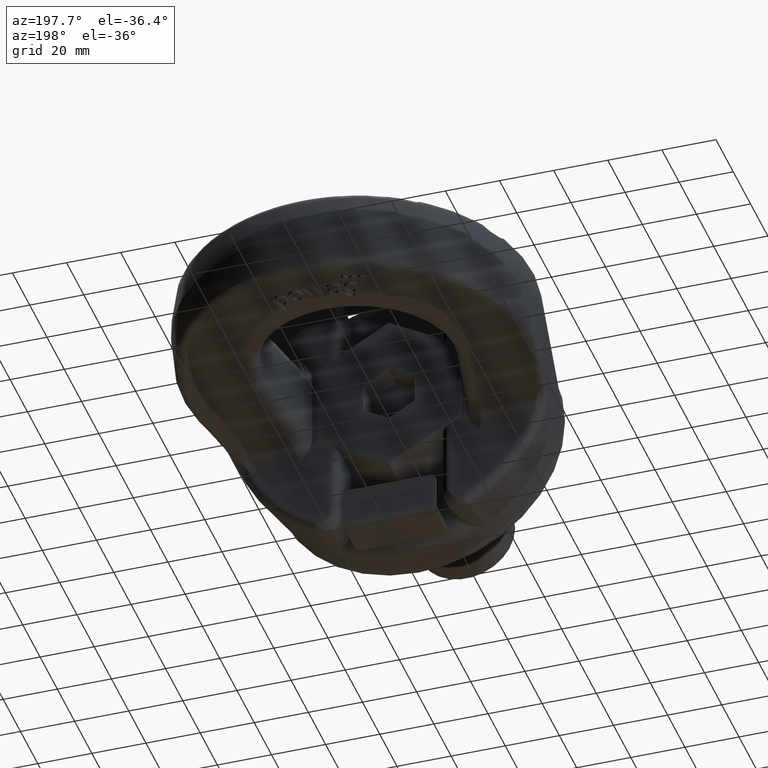
[diagram: clean part render]
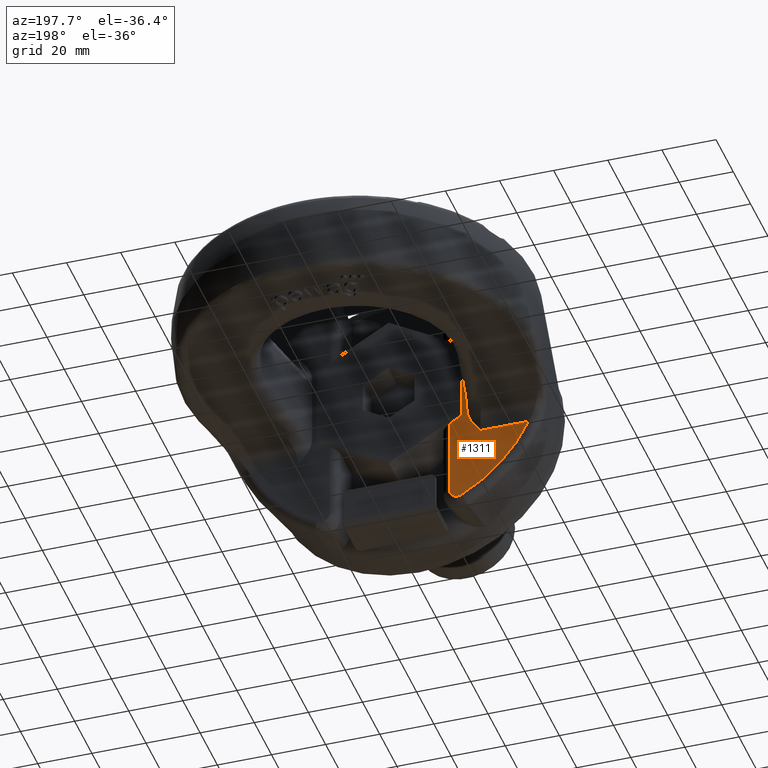
[diagram: same view with one face highlighted and labeled with its STEP entity id]
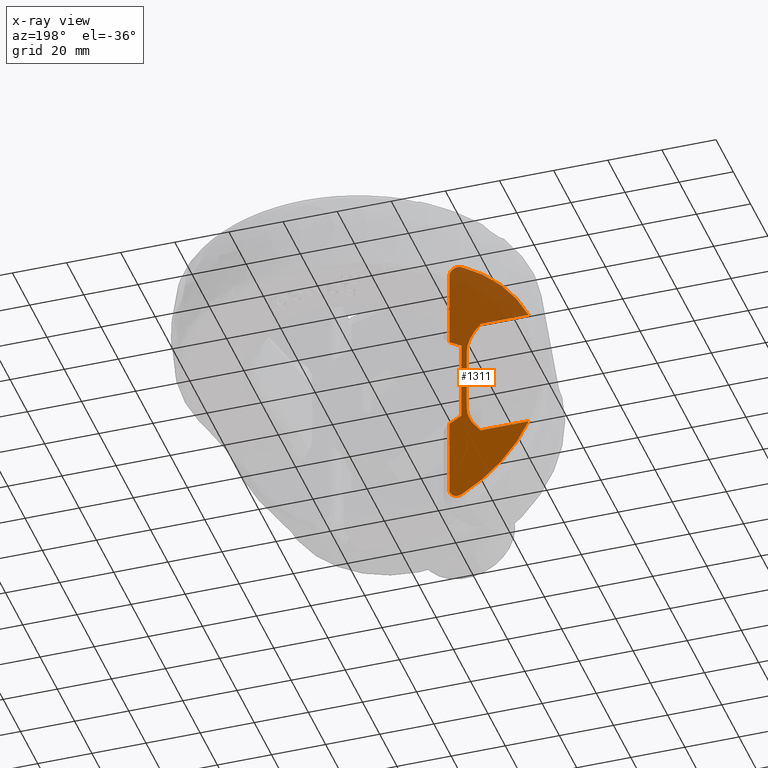
[diagram: x-ray of the same camera — body ghosted, the highlighted face saturated]
A machine part, auxiliary view. The second image highlights one B-rep face of the part: STEP entity #1311.
The next image is the same camera in x-ray: the body ghosted, the highlighted face saturated — about 49% of this face is hidden behind the body in this view.
In plain terms, the highlighted planar face has unit normal (0, 1, 0).
Its self-contained STEP definition (entity closure, byte-faithful):
#1091=FACE_OUTER_BOUND('',#1823,.T.);
#1311=ADVANCED_FACE('',(#1091),#1550,.T.);
#1550=PLANE('',#5126);
#1671=CIRCLE('',#5124,56.371725048885);
#1672=CIRCLE('',#5125,56.371725048885);
#1823=EDGE_LOOP('',(#2767,#2768,#2769,#2770,#2771,#2772,#2773,#2774,#2775,
#2776,#2777,#2778,#2779,#2780));
#2125=LINE('',#6578,#2405);
#2126=LINE('',#6580,#2406);
#2127=LINE('',#6582,#2407);
#2128=LINE('',#6584,#2408);
#2129=LINE('',#6586,#2409);
#2130=LINE('',#6610,#2410);
#2131=LINE('',#6619,#2411);
#2132=LINE('',#6628,#2412);
#2405=VECTOR('',#5437,1.);
#2406=VECTOR('',#5438,1.);
#2407=VECTOR('',#5439,1.);
#2408=VECTOR('',#5440,1.);
#2409=VECTOR('',#5441,1.);
#2410=VECTOR('',#5444,1.);
#2411=VECTOR('',#5445,1.);
#2412=VECTOR('',#5446,1.);
#2767=ORIENTED_EDGE('',*,*,#4331,.T.);
#2768=ORIENTED_EDGE('',*,*,#4332,.T.);
#2769=ORIENTED_EDGE('',*,*,#4333,.T.);
#2770=ORIENTED_EDGE('',*,*,#4334,.T.);
#2771=ORIENTED_EDGE('',*,*,#4335,.T.);
#2772=ORIENTED_EDGE('',*,*,#4336,.T.);
#2773=ORIENTED_EDGE('',*,*,#4337,.T.);
#2774=ORIENTED_EDGE('',*,*,#4338,.T.);
#2775=ORIENTED_EDGE('',*,*,#4339,.T.);
#2776=ORIENTED_EDGE('',*,*,#4340,.T.);
#2777=ORIENTED_EDGE('',*,*,#4341,.T.);
#2778=ORIENTED_EDGE('',*,*,#4342,.T.);
#2779=ORIENTED_EDGE('',*,*,#4343,.T.);
#2780=ORIENTED_EDGE('',*,*,#4344,.T.);
#3943=VERTEX_POINT('',#6576);
#3944=VERTEX_POINT('',#6577);
#3945=VERTEX_POINT('',#6579);
#3946=VERTEX_POINT('',#6581);
#3947=VERTEX_POINT('',#6583);
#3948=VERTEX_POINT('',#6585);
#3949=VERTEX_POINT('',#6587);
#3950=VERTEX_POINT('',#6607);
#3951=VERTEX_POINT('',#6609);
#3952=VERTEX_POINT('',#6611);
#3953=VERTEX_POINT('',#6618);
#3954=VERTEX_POINT('',#6620);
#3955=VERTEX_POINT('',#6627);
#3956=VERTEX_POINT('',#6629);
#4331=EDGE_CURVE('',#3943,#3944,#4875,.T.);
#4332=EDGE_CURVE('',#3944,#3945,#2125,.T.);
#4333=EDGE_CURVE('',#3945,#3946,#2126,.T.);
#4334=EDGE_CURVE('',#3946,#3947,#2127,.T.);
#4335=EDGE_CURVE('',#3947,#3948,#2128,.T.);
#4336=EDGE_CURVE('',#3948,#3949,#2129,.T.);
#4337=EDGE_CURVE('',#3949,#3950,#4876,.T.);
#4338=EDGE_CURVE('',#3950,#3951,#1671,.T.);
#4339=EDGE_CURVE('',#3951,#3952,#2130,.T.);
#4340=EDGE_CURVE('',#3952,#3953,#4877,.T.);
#4341=EDGE_CURVE('',#3953,#3954,#2131,.T.);
#4342=EDGE_CURVE('',#3954,#3955,#4878,.T.);
#4343=EDGE_CURVE('',#3955,#3956,#2132,.T.);
#4344=EDGE_CURVE('',#3956,#3943,#1672,.T.);
#4875=B_SPLINE_CURVE_WITH_KNOTS('',3,(#6554,#6555,#6556,#6557,#6558,#6559,
#6560,#6561,#6562,#6563,#6564,#6565,#6566,#6567,#6568,#6569,#6570,#6571,
#6572,#6573,#6574,#6575),.UNSPECIFIED.,.F.,.F.,(4,3,3,3,3,3,3,4),(0.,0.159610784100309,
0.319292000794046,0.478136025047528,0.638229256825482,0.801577551580934,
0.968880240442408,1.),.UNSPECIFIED.);
#4876=B_SPLINE_CURVE_WITH_KNOTS('',3,(#6588,#6589,#6590,#6591,#6592,#6593,
#6594,#6595,#6596,#6597,#6598,#6599,#6600,#6601,#6602,#6603,#6604,#6605,
#6606),.UNSPECIFIED.,.F.,.F.,(4,3,3,3,3,3,4),(0.,0.169943531574671,0.340008443851213,
0.508072254092031,0.672094220047798,0.832475844633733,1.),.UNSPECIFIED.);
#4877=B_SPLINE_CURVE_WITH_KNOTS('',3,(#6612,#6613,#6614,#6615,#6616,#6617),
 .UNSPECIFIED.,.F.,.F.,(4,2,4),(0.,0.5,1.),.UNSPECIFIED.);
#4878=B_SPLINE_CURVE_WITH_KNOTS('',3,(#6621,#6622,#6623,#6624,#6625,#6626),
 .UNSPECIFIED.,.F.,.F.,(4,2,4),(0.,0.5,1.),.UNSPECIFIED.);
#5124=AXIS2_PLACEMENT_3D('',#6608,#5442,#5443);
#5125=AXIS2_PLACEMENT_3D('',#6630,#5447,#5448);
#5126=AXIS2_PLACEMENT_3D('',#6631,#5449,#5450);
#5437=DIRECTION('',(0.,0.,-1.));
#5438=DIRECTION('',(-0.86602540378444,0.,-0.499999999999998));
#5439=DIRECTION('',(0.,0.,-1.));
#5440=DIRECTION('',(0.866025403784441,0.,-0.499999999999996));
#5441=DIRECTION('',(2.34291072916505E-15,0.,-1.));
#5442=DIRECTION('',(0.,1.,0.));
#5443=DIRECTION('',(2.34291072916505E-15,0.,-1.));
#5444=DIRECTION('',(1.,0.,2.34291072916505E-15));
#5445=DIRECTION('',(0.,0.,1.));
#5446=DIRECTION('',(-1.,0.,0.));
#5447=DIRECTION('',(0.,1.,0.));
#5448=DIRECTION('',(0.,0.,1.));
#5449=DIRECTION('',(0.,1.,0.));
#5450=DIRECTION('',(0.,0.,1.));
#6554=CARTESIAN_POINT('',(-26.6368430723214,34.,49.6814852447833));
#6555=CARTESIAN_POINT('',(-26.3369634365105,34.,49.8422664042097));
#6556=CARTESIAN_POINT('',(-26.0054234580321,34.,49.9540227036596));
#6557=CARTESIAN_POINT('',(-25.6692774032052,34.,50.0067882892707));
#6558=CARTESIAN_POINT('',(-25.333033794659,34.,50.0595691881037));
#6559=CARTESIAN_POINT('',(-24.9829512343836,34.,50.0547192375365));
#6560=CARTESIAN_POINT('',(-24.6482919632107,34.,49.9926808640263));
#6561=CARTESIAN_POINT('',(-24.3152846084625,34.,49.9309487190207));
#6562=CARTESIAN_POINT('',(-23.9884746989948,34.,49.8109879712981));
#6563=CARTESIAN_POINT('',(-23.6941859914288,34.,49.6433606685025));
#6564=CARTESIAN_POINT('',(-23.397535271703,34.,49.4743879599292));
#6565=CARTESIAN_POINT('',(-23.1259198810186,34.,49.2525498848335));
#6566=CARTESIAN_POINT('',(-22.9001302762508,34.,48.9964786444818));
#6567=CARTESIAN_POINT('',(-22.6697760087677,34.,48.7352305544497));
#6568=CARTESIAN_POINT('',(-22.4808972847214,34.,48.4314409081153));
#6569=CARTESIAN_POINT('',(-22.3473867550983,34.,48.1097444804496));
#6570=CARTESIAN_POINT('',(-22.2106899090108,34.,47.7803705562832));
#6571=CARTESIAN_POINT('',(-22.128313472555,34.,47.4233651600668));
#6572=CARTESIAN_POINT('',(-22.1062428993401,34.,47.0674352520105));
#6573=CARTESIAN_POINT('',(-22.1020827549859,34.,47.0003450236292));
#6574=CARTESIAN_POINT('',(-22.1,34.,46.9330937365832));
#6575=CARTESIAN_POINT('',(-22.1,34.,46.8658746504149));
#6576=CARTESIAN_POINT('',(-26.6368430723214,34.,49.6814852447833));
#6577=CARTESIAN_POINT('',(-22.1,34.,46.8658746504149));
#6578=CARTESIAN_POINT('',(-22.1,34.,72.6));
#6579=CARTESIAN_POINT('',(-22.1,34.,17.8401233179594));
#6580=CARTESIAN_POINT('',(-3.22070111043019,34.,28.7400916139639));
#6581=CARTESIAN_POINT('',(-26.5,34.,15.2997821335251));
#6582=CARTESIAN_POINT('',(-26.5,34.,72.6));
#6583=CARTESIAN_POINT('',(-26.5,34.,-15.2997821335252));
#6584=CARTESIAN_POINT('',(3.93672215737515,34.,-32.8724318643354));
#6585=CARTESIAN_POINT('',(-22.1,34.,-17.8401233179595));
#6586=CARTESIAN_POINT('',(-22.0999999999998,34.,-72.6));
#6587=CARTESIAN_POINT('',(-22.0999999999999,34.,-46.8658746504149));
#6588=CARTESIAN_POINT('',(-22.0999999999999,34.,-46.8658746504149));
#6589=CARTESIAN_POINT('',(-22.0999999999997,34.,-47.2282704353309));
#6590=CARTESIAN_POINT('',(-22.1621114470701,34.,-47.5956761581143));
#6591=CARTESIAN_POINT('',(-22.281704118344,34.,-47.9377701479804));
#6592=CARTESIAN_POINT('',(-22.4013442529622,34.,-48.2799999064071));
#6593=CARTESIAN_POINT('',(-22.5819751212386,34.,-48.6064573715156));
#6594=CARTESIAN_POINT('',(-22.8093810253099,34.,-48.8888073744513));
#6595=CARTESIAN_POINT('',(-23.034081470624,34.,-49.1677982460963));
#6596=CARTESIAN_POINT('',(-23.3109677302003,34.,-49.4115874339799));
#6597=CARTESIAN_POINT('',(-23.6169515765766,34.,-49.5978670151));
#6598=CARTESIAN_POINT('',(-23.9156617650578,34.,-49.779718473749));
#6599=CARTESIAN_POINT('',(-24.2506355240164,34.,-49.9118598579712));
#6600=CARTESIAN_POINT('',(-24.5932506097311,34.,-49.9819500338586));
#6601=CARTESIAN_POINT('',(-24.9284182563872,34.,-50.0505166565363));
#6602=CARTESIAN_POINT('',(-25.2802580817177,34.,-50.0616206083875));
#6603=CARTESIAN_POINT('',(-25.6190702927185,34.,-50.0142389791713));
#6604=CARTESIAN_POINT('',(-25.9725596977192,34.,-49.9648047988916));
#6605=CARTESIAN_POINT('',(-26.322274450957,34.,-49.8501419377457));
#6606=CARTESIAN_POINT('',(-26.6368430723216,34.,-49.6814852447849));
#6607=CARTESIAN_POINT('',(-26.6368430723213,34.,-49.6814852447832));
#6608=CARTESIAN_POINT('',(1.26838675226105E-13,34.,-3.88529906868289E-14));
#6609=CARTESIAN_POINT('',(-51.3537621308028,34.,-23.2500000000001));
#6610=CARTESIAN_POINT('',(-18.9999999999999,34.,-23.2500000000001));
#6611=CARTESIAN_POINT('',(-33.6345848189922,34.,-23.2500000000001));
#6612=CARTESIAN_POINT('',(-33.6345848189922,34.,-23.2500000000001));
#6613=CARTESIAN_POINT('',(-32.2892795818119,34.,-21.745393551066));
#6614=CARTESIAN_POINT('',(-31.0168645745644,34.,-20.132054695991));
#6615=CARTESIAN_POINT('',(-29.1544187699231,34.,-16.5748959295064));
#6616=CARTESIAN_POINT('',(-28.5432310237403,34.,-14.5939347919164));
#6617=CARTESIAN_POINT('',(-28.5432310237403,34.,-12.5544485546208));
#6618=CARTESIAN_POINT('',(-28.5432310237403,34.,-12.5544485546208));
#6619=CARTESIAN_POINT('',(-28.5432310237403,34.,72.6));
#6620=CARTESIAN_POINT('',(-28.5432310237403,34.,12.5544485546208));
#6621=CARTESIAN_POINT('',(-28.5432310237403,34.,12.5544485546208));
#6622=CARTESIAN_POINT('',(-28.5432310237403,34.,14.5939347919163));
#6623=CARTESIAN_POINT('',(-29.1544187699231,34.,16.5748959295063));
#6624=CARTESIAN_POINT('',(-31.0168645745645,34.,20.1320546959909));
#6625=CARTESIAN_POINT('',(-32.2892795818117,34.,21.7453935510661));
#6626=CARTESIAN_POINT('',(-33.6345848189923,34.,23.25));
#6627=CARTESIAN_POINT('',(-33.6345848189923,34.,23.25));
#6628=CARTESIAN_POINT('',(-28.5432310237403,34.,23.25));
#6629=CARTESIAN_POINT('',(-51.353762130803,34.,23.25));
#6630=CARTESIAN_POINT('',(-1.26838675226105E-13,34.,3.88529906868292E-14));
#6631=CARTESIAN_POINT('',(-28.5432310237403,34.,72.6));